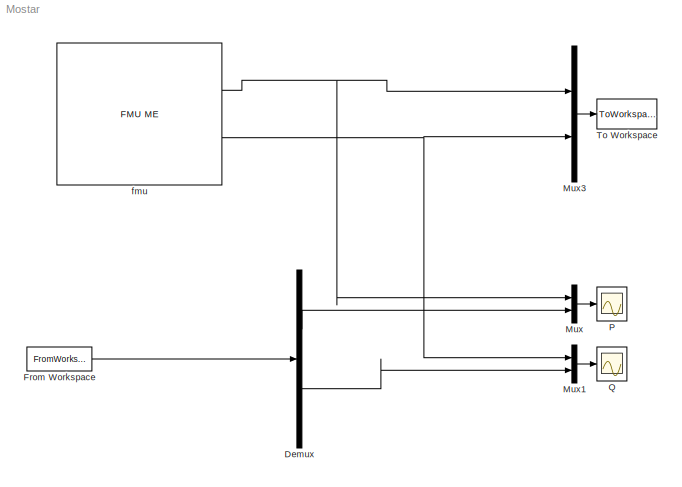
MODEL Mostar
KIND model
BLOCK [Demux] Demux
  Outputs = 2
  Ports = [1, 2]
  SID = 4
BLOCK [FromWorkspace] From Workspace
  SID = 16
  VariableName = dataMeasuredS
BLOCK [Mux] Mux
  DisplayOption = bar
  Inputs = 2
  Ports = [2, 1]
  SID = 8
BLOCK [Mux] Mux1
  DisplayOption = bar
  Inputs = 2
  Ports = [2, 1]
  SID = 50
BLOCK [Mux] Mux3
  DisplayOption = bar
  Inputs = 2
  Ports = [2, 1]
  SID = 11
BLOCK [Scope] P
  Floating = off
  NumInputPorts = 1
  Ports = [1]
  SID = 46
  ScopeSpecificationString = Simulink.scopes.TimeScopeBlockCfg('CurrentConfiguration', extmgr.ConfigurationSet(extmgr.Configuration('Core','General UI',true),extmgr.Configuration('Core','Source UI',true),extmgr.Configuration('Sources','WiredSimulink',true,'DataLoggingSaveFormat','StructureWithTime','DataLoggingLimitDataPoints',true,'DataLoggingDecimation','1','DataLoggingDecimateData',true,'DataLoggingVariableName','ScopeData...<+1804ch>
BLOCK [Scope] Q
  Floating = off
  NumInputPorts = 1
  Ports = [1]
  SID = 12
  ScopeSpecificationString = Simulink.scopes.TimeScopeBlockCfg('CurrentConfiguration', extmgr.ConfigurationSet(extmgr.Configuration('Core','General UI',true,'FigureColor',[0 0 0]),extmgr.Configuration('Core','Source UI',true),extmgr.Configuration('Sources','WiredSimulink',true,'DataLoggingSaveFormat','StructureWithTime','DataLoggingLimitDataPoints',true,'DataLoggingDecimation','1','DataLoggingDecimateData',true),extmgr.Config...<+1847ch>
BLOCK [ToWorkspace] To Workspace
  MaxDataPoints = inf
  Ports = [1]
  SID = 2
  SampleTime = -1
  SaveFormat = Structure With Time
  VariableName = simout
BLOCK [Reference] fmu  REF=fmu_me_lib/FMU ME
  Description = Simulates an FMU for Model Exchange 1.0 or Model Exchange 2.0.
  MultiThreadCoSim = auto
  Ports = [0, 2]
  SID = 45
  SourceBlock = fmu_me_lib/FMU ME
  UserData = DataTag0
  UserDataPersistent = on
  dummy = 0
LINE Demux:1 -> Mux:2
LINE Demux:2 -> Mux1:2
LINE From Workspace:1 -> Demux:1
LINE Mux1:1 -> Q:1
LINE Mux3:1 -> To Workspace:1
LINE Mux:1 -> P:1
NET fmu:1 -> Mux3:1, Mux:1
NET fmu:2 -> Mux1:1, Mux3:2
note: NET lines group one-source signal fan-out (src -> all destinations, sorted); 1:1 wires keep LINE
